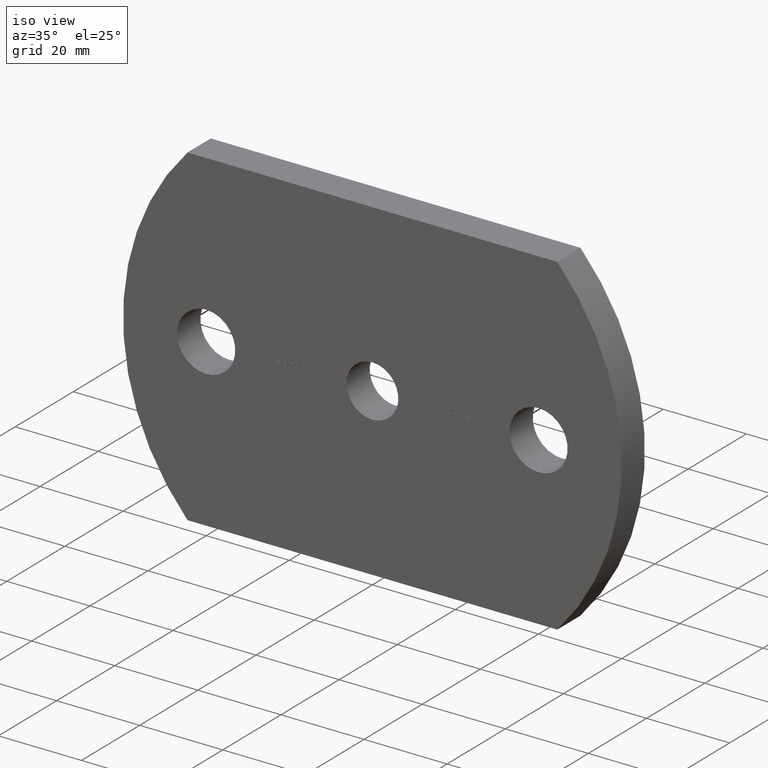
[diagram: clean part render]
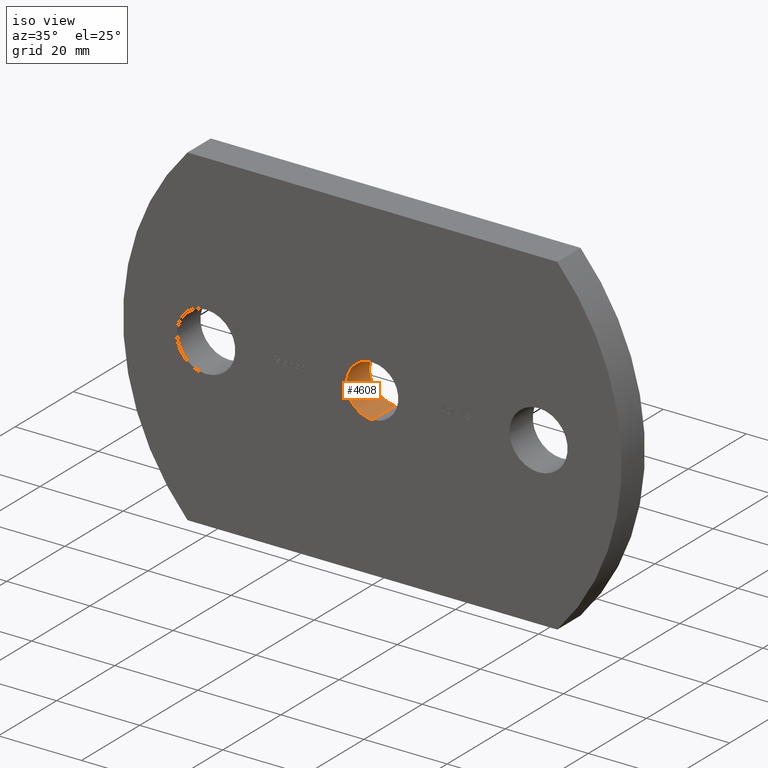
[diagram: same view with one face highlighted and labeled with its STEP entity id]
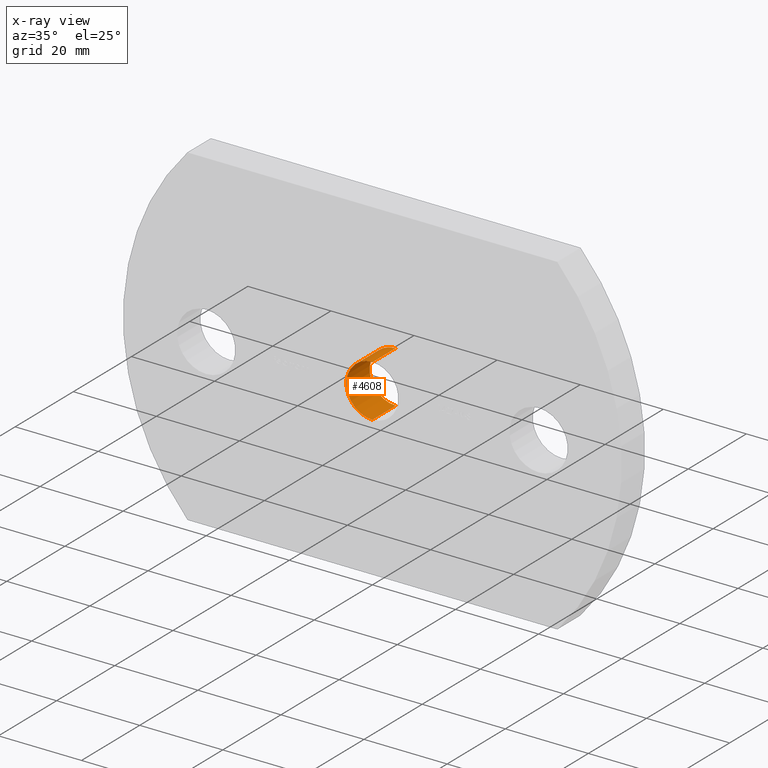
[diagram: x-ray of the same camera — body ghosted, the highlighted face saturated]
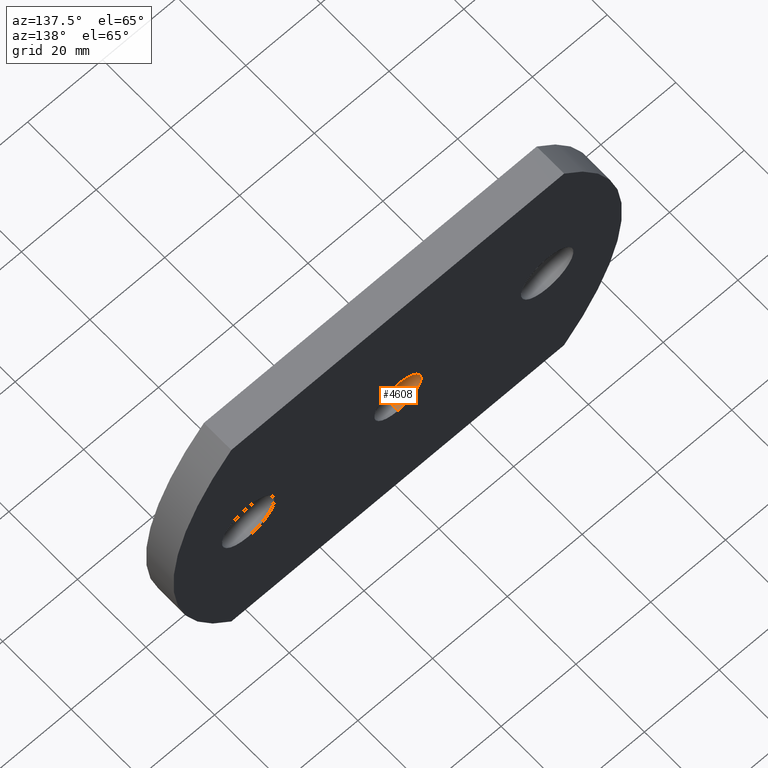
[diagram: same view with one face highlighted and labeled with its STEP entity id]
A machine part, iso view. The second image highlights one B-rep face of the part: STEP entity #4608.
The next image is the same camera in x-ray: the body ghosted, the highlighted face saturated — about 0% of this face is hidden behind the body in this view.
A second angle (auxiliary view) of the same face is appended — the face is thin or edge-on in the first view.
In plain terms, the highlighted cylindrical surface (edge-blend (fillet) strip) has radius 6.25 mm, axis along (-0, 1, -0).
Its self-contained STEP definition (entity closure, byte-faithful):
#300 = VECTOR ( 'NONE', #9329, 1000.000000000000000 ) ;
#505 = EDGE_CURVE ( 'NONE', #6568, #7712, #629, .T. ) ;
#592 = ORIENTED_EDGE ( 'NONE', *, *, #2353, .F. ) ;
#629 = CIRCLE ( 'NONE', #9073, 6.250000000000000000 ) ;
#672 = DIRECTION ( 'NONE',  ( -0.0000000000000000000, 1.000000000000000000, -0.0000000000000000000 ) ) ;
#1535 = CARTESIAN_POINT ( 'NONE',  ( 0.0000000000000000000, 0.0000000000000000000, 0.0000000000000000000 ) ) ;
#1670 = CYLINDRICAL_SURFACE ( 'NONE', #8685, 6.250000000000000000 ) ;
#1882 = ORIENTED_EDGE ( 'NONE', *, *, #505, .T. ) ;
#2353 = EDGE_CURVE ( 'NONE', #5185, #7712, #4041, .T. ) ;
#2404 = LINE ( 'NONE', #3755, #300 ) ;
#3642 = DIRECTION ( 'NONE',  ( 0.0000000000000000000, 1.000000000000000000, 0.0000000000000000000 ) ) ;
#3755 = CARTESIAN_POINT ( 'NONE',  ( 7.654042494670957600E-016, 0.0000000000000000000, -6.250000000000000000 ) ) ;
#3978 = DIRECTION ( 'NONE',  ( 0.0000000000000000000, 0.0000000000000000000, 1.000000000000000000 ) ) ;
#4041 = LINE ( 'NONE', #7745, #5609 ) ;
#4246 = FACE_OUTER_BOUND ( 'NONE', #8776, .T. ) ;
#4608 = ADVANCED_FACE ( 'NONE', ( #4246 ), #1670, .F. ) ;
#4650 = CARTESIAN_POINT ( 'NONE',  ( 0.0000000000000000000, 8.000000000000000000, 6.250000000000000000 ) ) ;
#5109 = DIRECTION ( 'NONE',  ( 0.0000000000000000000, 0.0000000000000000000, 1.000000000000000000 ) ) ;
#5185 = VERTEX_POINT ( 'NONE', #9514 ) ;
#5609 = VECTOR ( 'NONE', #9421, 1000.000000000000000 ) ;
#5614 = DIRECTION ( 'NONE',  ( 0.0000000000000000000, 1.000000000000000000, 0.0000000000000000000 ) ) ;
#5693 = ORIENTED_EDGE ( 'NONE', *, *, #7840, .F. ) ;
#5832 = AXIS2_PLACEMENT_3D ( 'NONE', #9515, #5614, #9546 ) ;
#5970 = VERTEX_POINT ( 'NONE', #6348 ) ;
#6348 = CARTESIAN_POINT ( 'NONE',  ( 7.654042494670957600E-016, 0.0000000000000000000, -6.250000000000000000 ) ) ;
#6540 = ORIENTED_EDGE ( 'NONE', *, *, #7065, .T. ) ;
#6568 = VERTEX_POINT ( 'NONE', #7528 ) ;
#7065 = EDGE_CURVE ( 'NONE', #5970, #6568, #2404, .T. ) ;
#7528 = CARTESIAN_POINT ( 'NONE',  ( 7.654042494670957600E-016, 8.000000000000000000, -6.250000000000000000 ) ) ;
#7712 = VERTEX_POINT ( 'NONE', #4650 ) ;
#7745 = CARTESIAN_POINT ( 'NONE',  ( 0.0000000000000000000, 0.0000000000000000000, 6.250000000000000000 ) ) ;
#7840 = EDGE_CURVE ( 'NONE', #5970, #5185, #8469, .T. ) ;
#8469 = CIRCLE ( 'NONE', #5832, 6.250000000000000000 ) ;
#8685 = AXIS2_PLACEMENT_3D ( 'NONE', #1535, #672, #3978 ) ;
#8776 = EDGE_LOOP ( 'NONE', ( #5693, #6540, #1882, #592 ) ) ;
#9073 = AXIS2_PLACEMENT_3D ( 'NONE', #9730, #3642, #5109 ) ;
#9329 = DIRECTION ( 'NONE',  ( -0.0000000000000000000, 1.000000000000000000, -0.0000000000000000000 ) ) ;
#9421 = DIRECTION ( 'NONE',  ( -0.0000000000000000000, 1.000000000000000000, -0.0000000000000000000 ) ) ;
#9514 = CARTESIAN_POINT ( 'NONE',  ( 0.0000000000000000000, 0.0000000000000000000, 6.250000000000000000 ) ) ;
#9515 = CARTESIAN_POINT ( 'NONE',  ( 0.0000000000000000000, 0.0000000000000000000, 0.0000000000000000000 ) ) ;
#9546 = DIRECTION ( 'NONE',  ( 0.0000000000000000000, 0.0000000000000000000, 1.000000000000000000 ) ) ;
#9730 = CARTESIAN_POINT ( 'NONE',  ( 0.0000000000000000000, 8.000000000000000000, 0.0000000000000000000 ) ) ;